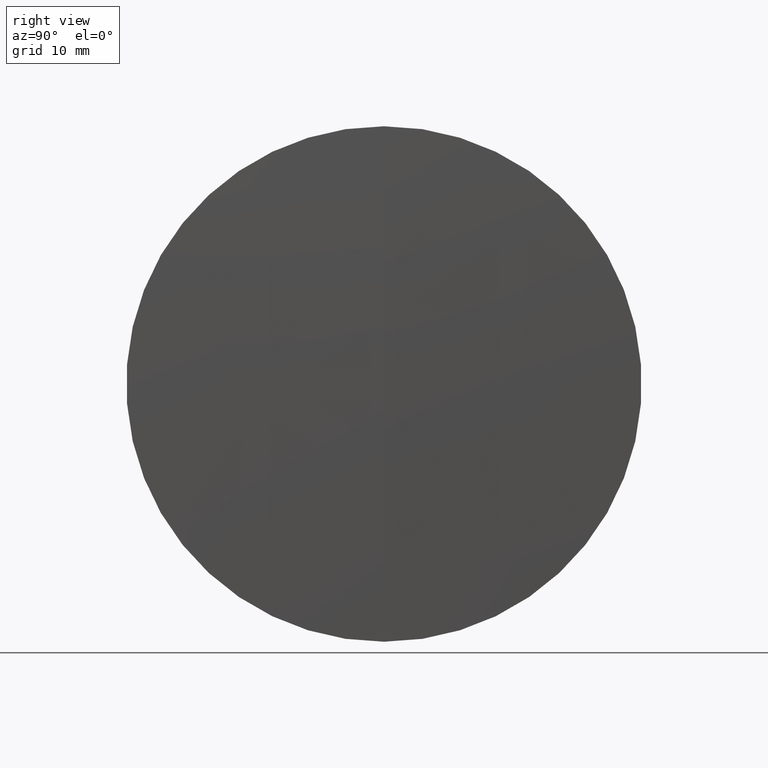
[diagram: clean part render]
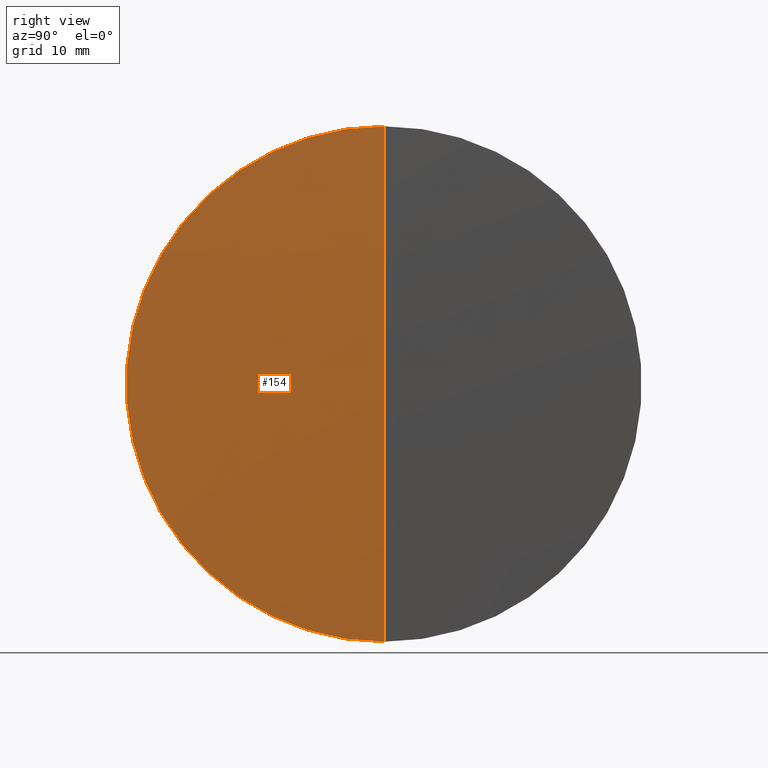
[diagram: same view with one face highlighted and labeled with its STEP entity id]
A machine part, right view. The second image highlights one B-rep face of the part: STEP entity #154.
In plain terms, the highlighted spherical surface has radius 760 mm.
Its self-contained STEP definition (entity closure, byte-faithful):
#1 = ORIENTED_EDGE ( 'NONE', *, *, #4, .F. ) ;
#4 = EDGE_CURVE ( 'NONE', #104, #21, #342, .T. ) ;
#20 = CARTESIAN_POINT ( 'NONE',  ( 445.9972164850302600, 0.0000000000000000000, 0.0000000000000000000 ) ) ;
#21 = VERTEX_POINT ( 'NONE', #95 ) ;
#23 = DIRECTION ( 'NONE',  ( 0.0000000000000000000, -1.224646799147353200E-016, 1.000000000000000000 ) ) ;
#29 = AXIS2_PLACEMENT_3D ( 'NONE', #102, #269, #23 ) ;
#46 = CIRCLE ( 'NONE', #29, 760.0000000000000000 ) ;
#49 = DIRECTION ( 'NONE',  ( 0.0000000000000000000, -1.000000000000000000, 0.0000000000000000000 ) ) ;
#54 = CARTESIAN_POINT ( 'NONE',  ( 445.9972164850302600, 3.110602869834258700E-015, -25.39999999999983200 ) ) ;
#95 = CARTESIAN_POINT ( 'NONE',  ( 445.9972164850302600, 0.0000000000000000000, 25.39999999999983200 ) ) ;
#100 = EDGE_CURVE ( 'NONE', #133, #21, #212, .T. ) ;
#102 = CARTESIAN_POINT ( 'NONE',  ( -313.5782175569086700, 0.0000000000000000000, 0.0000000000000000000 ) ) ;
#104 = VERTEX_POINT ( 'NONE', #54 ) ;
#109 = SPHERICAL_SURFACE ( 'NONE', #120, 760.0000000000000000 ) ;
#120 = AXIS2_PLACEMENT_3D ( 'NONE', #184, #271, #161 ) ;
#133 = VERTEX_POINT ( 'NONE', #329 ) ;
#144 = AXIS2_PLACEMENT_3D ( 'NONE', #20, #260, #234 ) ;
#154 = ADVANCED_FACE ( 'NONE', ( #289 ), #109, .T. ) ;
#161 = DIRECTION ( 'NONE',  ( 0.0000000000000000000, 0.0000000000000000000, 1.000000000000000000 ) ) ;
#165 = EDGE_CURVE ( 'NONE', #133, #104, #46, .T. ) ;
#184 = CARTESIAN_POINT ( 'NONE',  ( -313.5782175569086700, 0.0000000000000000000, 0.0000000000000000000 ) ) ;
#212 = CIRCLE ( 'NONE', #214, 760.0000000000000000 ) ;
#214 = AXIS2_PLACEMENT_3D ( 'NONE', #242, #49, #297 ) ;
#226 = ORIENTED_EDGE ( 'NONE', *, *, #100, .T. ) ;
#234 = DIRECTION ( 'NONE',  ( 0.0000000000000000000, 0.0000000000000000000, 1.000000000000000000 ) ) ;
#242 = CARTESIAN_POINT ( 'NONE',  ( -313.5782175569086700, 0.0000000000000000000, 0.0000000000000000000 ) ) ;
#260 = DIRECTION ( 'NONE',  ( -1.000000000000000000, -0.0000000000000000000, -0.0000000000000000000 ) ) ;
#269 = DIRECTION ( 'NONE',  ( -0.0000000000000000000, 1.000000000000000000, 1.224646799147353200E-016 ) ) ;
#271 = DIRECTION ( 'NONE',  ( 0.0000000000000000000, 1.000000000000000000, 0.0000000000000000000 ) ) ;
#289 = FACE_OUTER_BOUND ( 'NONE', #303, .T. ) ;
#297 = DIRECTION ( 'NONE',  ( 0.0000000000000000000, 0.0000000000000000000, -1.000000000000000000 ) ) ;
#303 = EDGE_LOOP ( 'NONE', ( #339, #226, #1 ) ) ;
#329 = CARTESIAN_POINT ( 'NONE',  ( 446.4217824430913300, 0.0000000000000000000, 4.653657836759942600E-014 ) ) ;
#339 = ORIENTED_EDGE ( 'NONE', *, *, #165, .F. ) ;
#342 = CIRCLE ( 'NONE', #144, 25.39999999999983200 ) ;